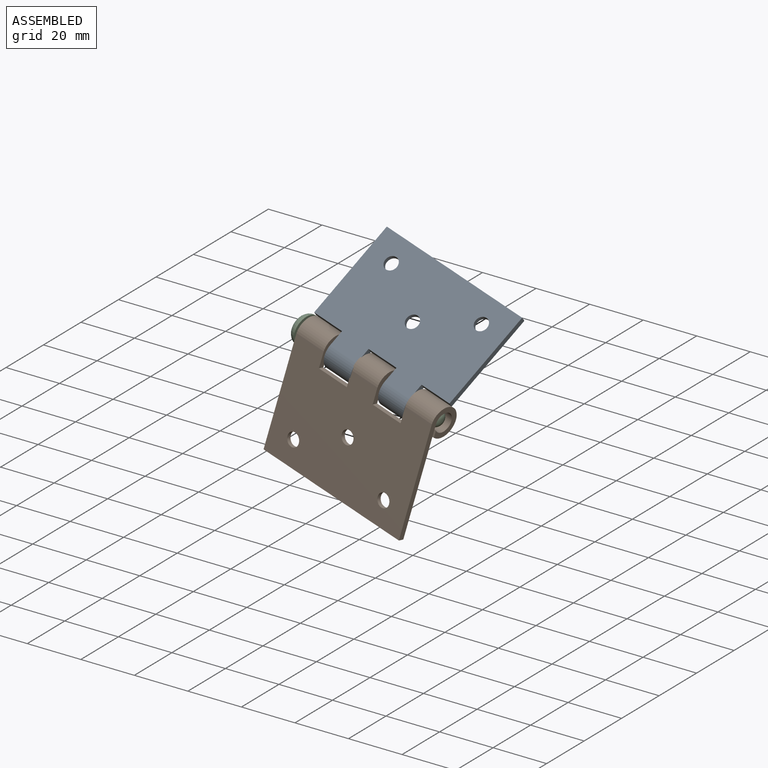
[diagram: assembled view]
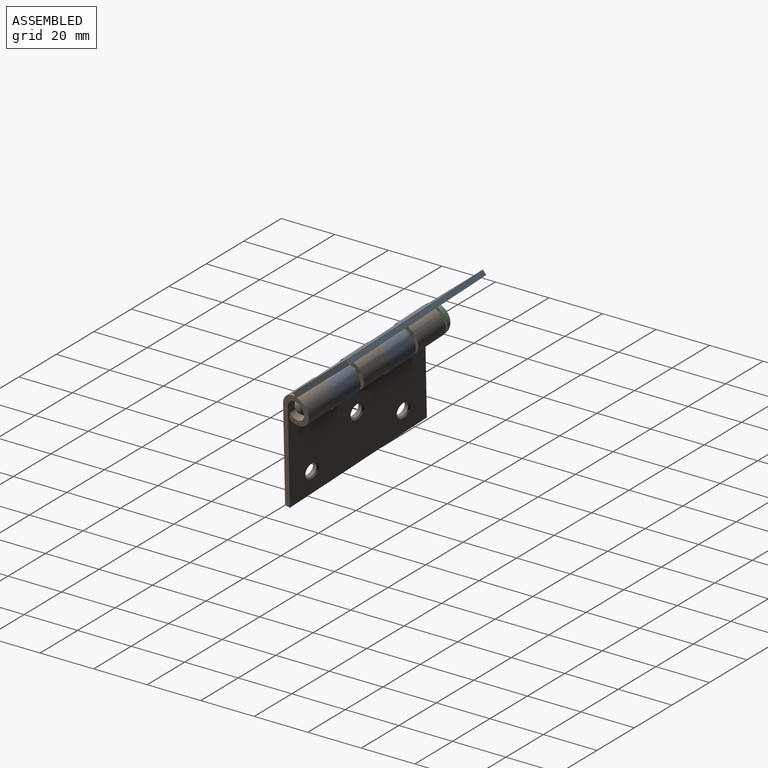
[diagram: assembled view, second angle]
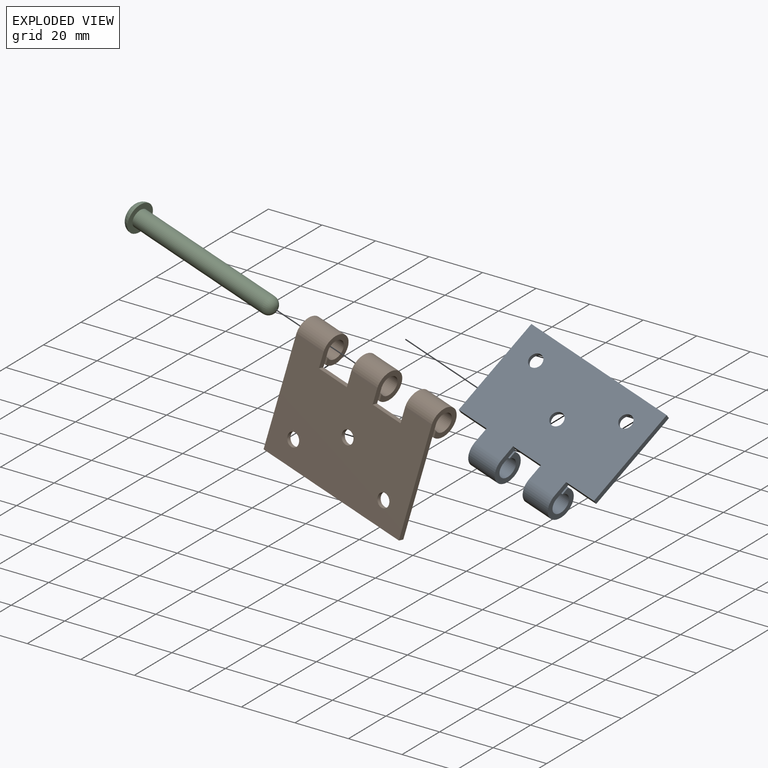
[diagram: exploded view]
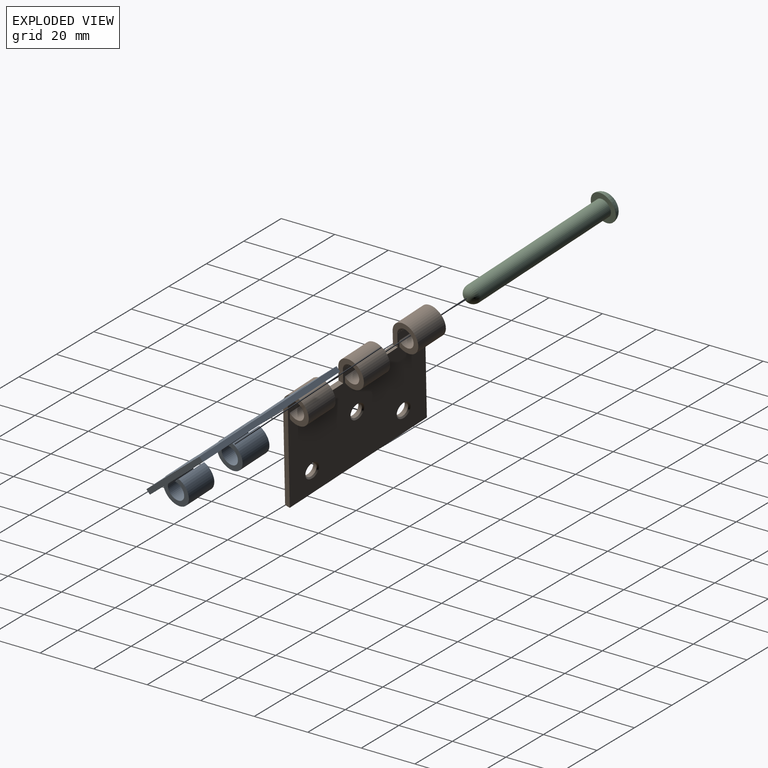
[diagram: exploded view, second angle]
ASSEMBLY  parts=3 mates=2
PART A: 26 faces, bbox 60x45.9x11 mm
  f0: cylinder r=5.5mm len=11.76mm, axis (-1,0,0), area 341.6mm2, adj f2,f10,f22,f24
  f1: cylinder r=5.5mm len=11.14mm, axis (-1,0,0), area 323.8mm2, adj f3,f10,f19,f23
  f2: plane 11.76x2.54mm, normal (0,0,-1), area 29.8mm2, adj f0,f4,f22,f24
  f3: plane 11.14x2.54mm, normal (0,0,-1), area 28.3mm2, adj f1,f5,f19,f23
  f4: cylinder r=3.5mm len=11.76mm, axis (-1,0,0), area 229.3mm2, adj f2,f6,f22,f24
  f5: cylinder r=3.5mm len=11.14mm, axis (-1,0,0), area 217.4mm2, adj f3,f7,f19,f23
  f6: plane 11.76x0.01mm, normal (0,1,0), area 0.1mm2, adj f4,f8,f22,f24
  f7: plane 11.14x0.01mm, normal (0,1,0), area 0.1mm2, adj f5,f8,f19,f23
  f8: plane 60x40.37mm, normal (0,0,1), area 2133.3mm2, adj f6,f7,f9,f11,f12,f16,f17,f18
  f9: plane 60x2mm, normal (0,-1,0), area 120mm2, adj f8,f10,f11,f12
  f10: plane 60x40mm, normal (0,0,-1), area 2150.7mm2, adj f0,f1,f9,f11,f12,f13,f14,f15
  f11: plane 34.87x2mm, normal (1,0,0), area 69.7mm2, adj f8,f9,f10,f20
  f12: plane 34.87x2mm, normal (-1,0,0), area 69.7mm2, adj f8,f9,f10,f25
  f13: cylinder r=2.5mm len=5mm, axis (0,0,1), area 23.6mm2, adj f10,f18
  f14: cylinder r=2.5mm len=5mm, axis (0,0,1), area 23.6mm2, adj f10,f16
  f15: cylinder r=2.5mm len=5mm, axis (0,0,1), area 23.6mm2, adj f10,f17
  f16: cone r=2.5mm half-angle=45deg, axis (0,0,1), area 12.2mm2, adj f8,f14
  f17: cone r=2.5mm half-angle=45deg, axis (0,0,1), area 12.2mm2, adj f8,f15
  f18: cone r=2.5mm half-angle=45deg, axis (0,0,1), area 12.2mm2, adj f8,f13
  f19: plane 11x11mm, normal (1,0,0), area 59.1mm2, adj f1,f3,f5,f7,f8,f10,f20
  f20: plane 12.37x2mm, normal (0,1,0), area 24.7mm2, adj f8,f10,f11,f19
  f21: plane 12.37x2mm, normal (0,1,0), area 24.7mm2, adj f8,f10,f22,f23
  f22: plane 11x11mm, normal (1,0,0), area 59.1mm2, adj f0,f2,f4,f6,f8,f10,f21
  f23: plane 11x11mm, normal (-1,0,0), area 59.1mm2, adj f1,f3,f5,f7,f8,f10,f21
  f24: plane 11x11mm, normal (-1,0,0), area 59.1mm2, adj f0,f2,f4,f6,f8,f10,f25
  f25: plane 12.37x2mm, normal (0,1,0), area 24.7mm2, adj f8,f10,f12,f24
PART B: 29 faces, bbox 60x45.9x11 mm
  f0: plane 60x40.37mm, normal (0,0,1), area 2201.3mm2, adj f8,f9,f10,f14,f15,f16,f20,f21
  f1: plane 60x40mm, normal (0,0,-1), area 2214.2mm2, adj f2,f3,f10,f11,f15,f16,f17,f18
  f2: cylinder r=5.5mm len=12.06mm, axis (-1,0,0), area 350.5mm2, adj f1,f4,f16,f27
  f3: cylinder r=5.5mm len=11.45mm, axis (-1,0,0), area 332.7mm2, adj f1,f5,f24,f28
  f4: plane 12.06x2.54mm, normal (0,0,-1), area 30.6mm2, adj f2,f6,f16,f27
  f5: plane 11.45x2.54mm, normal (0,0,-1), area 29.1mm2, adj f3,f7,f24,f28
  f6: cylinder r=3.5mm len=12.06mm, axis (-1,0,0), area 235.3mm2, adj f4,f8,f16,f27
  f7: cylinder r=3.5mm len=11.45mm, axis (-1,0,0), area 223.4mm2, adj f5,f9,f24,f28
  f8: plane 12.06x0.01mm, normal (0,-1,0), area 0.1mm2, adj f0,f6,f16,f27
  f9: plane 11.45x0.01mm, normal (0,-1,0), area 0.1mm2, adj f0,f7,f24,f28
  f10: plane 60x2mm, normal (0,1,0), area 120mm2, adj f0,f1,f15,f16
  f11: cylinder r=5.5mm len=11.76mm, axis (-1,0,0), area 341.6mm2, adj f1,f12,f15,f25
  f12: plane 11.76x2.54mm, normal (0,0,-1), area 29.8mm2, adj f11,f13,f15,f25
  f13: cylinder r=3.5mm len=11.76mm, axis (-1,0,0), area 229.3mm2, adj f12,f14,f15,f25
  f14: plane 11.76x0.01mm, normal (0,-1,0), area 0.1mm2, adj f0,f13,f15,f25
  f15: plane 45.87x11mm, normal (1,0,0), area 128.9mm2, adj f0,f1,f10,f11,f12,f13,f14
  f16: plane 45.87x11mm, normal (-1,0,0), area 128.9mm2, adj f0,f1,f2,f4,f6,f8,f10
  f17: cylinder r=2.5mm len=5mm, axis (0,0,1), area 23.6mm2, adj f1,f22
  f18: cylinder r=2.5mm len=5mm, axis (0,0,1), area 23.6mm2, adj f1,f20
  f19: cylinder r=2.5mm len=5mm, axis (0,0,1), area 23.6mm2, adj f1,f21
  f20: cone r=2.5mm half-angle=45deg, axis (0,0,1), area 12.2mm2, adj f0,f18
  f21: cone r=2.5mm half-angle=45deg, axis (0,0,1), area 12.2mm2, adj f0,f19
  f22: cone r=2.5mm half-angle=45deg, axis (0,0,1), area 12.2mm2, adj f0,f17
  f23: plane 12.37x2mm, normal (0,-1,0), area 24.7mm2, adj f0,f1,f24,f25
  f24: plane 11x11mm, normal (1,0,0), area 59.1mm2, adj f0,f1,f3,f5,f7,f9,f23
  f25: plane 11x11mm, normal (-1,0,0), area 59.1mm2, adj f0,f1,f11,f12,f13,f14,f23
  f26: plane 12.37x2mm, normal (0,-1,0), area 24.7mm2, adj f0,f1,f27,f28
  f27: plane 11x11mm, normal (1,0,0), area 59.1mm2, adj f0,f1,f2,f4,f6,f8,f26
  f28: plane 11x11mm, normal (-1,0,0), area 59.1mm2, adj f0,f1,f3,f5,f7,f9,f26
PART C: 6 faces, bbox 63x10.8x10.8 mm
  f0: cylinder r=3.25mm len=57mm, axis (-1,0,0), area 1164mm2, adj f3,f5
  f1: plane 0.5x0.5mm, normal (1,0,0), area 0.2mm2, adj f5
  f2: plane 4.8x4.8mm, normal (-1,0,0), area 18.1mm2, adj f4
  f3: plane 10.8x10.8mm, normal (1,0,0), area 58.4mm2, adj f0,f4
  f4: torus R=2.4mm, axis (-1,0,0), area 127.6mm2, adj f2,f3
  f5: torus R=0.25mm, axis (1,0,0), area 64mm2, adj f0,f1
PLACE A rot(axis=(-0.99,0.12,0.06),140.7deg) t=(-86.47,13.22,51.58)mm
PLACE B rot(axis=(-0.99,0.17,0.02),99.4deg) t=(-84.39,-8.37,86.04)mm
PLACE C rot(axis=(-0.99,0.17,0.02),99.4deg) t=(-96.06,-30.41,51.3)mm
MATE cylindrical B.f2 <-> C.f0  axis (-0.97,0.18,0.19) through (-95.67,3.78,16.29)mm
MATE revolute B.f25 <-> A.f19  axis (-0.97,0.18,0.19) through (-49.14,-5.05,7.1)mm
